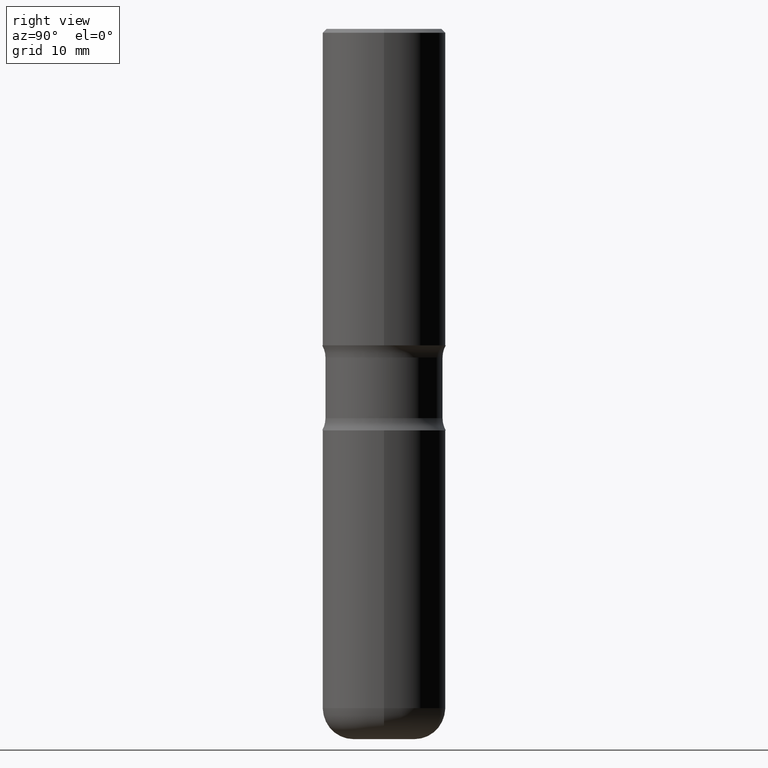
[diagram: clean part render]
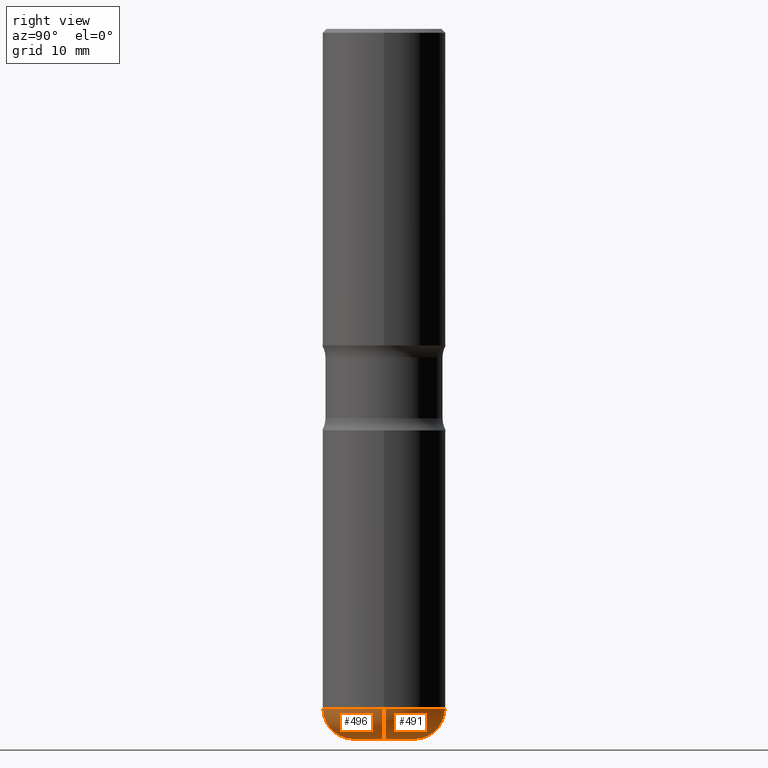
[diagram: same view with one multi-face feature highlighted, each face labeled with its STEP entity id]
A machine part, right view. The highlighted faces form ONE feature: a constant-radius fillet chain: 2 tangent blend faces with common blend radius 4.0132 mm. The faces share edges in the B-rep.
Their STEP definitions:
[1] entity #491 (Torus):
#18 = AXIS2_PLACEMENT_3D ( 'NONE', #289, #519, #332 ) ;
#41 = CIRCLE ( 'NONE', #358, 0.1569500000000003948 ) ;
#44 = EDGE_CURVE ( 'NONE', #530, #207, #303, .T. ) ;
#74 = EDGE_LOOP ( 'NONE', ( #375, #155, #523, #226 ) ) ;
#79 = CIRCLE ( 'NONE', #395, 0.1579999999999999183 ) ;
#102 = VERTEX_POINT ( 'NONE', #383 ) ;
#126 = CARTESIAN_POINT ( 'NONE',  ( -0.1569500000000003670, -1.097929453397717650E-14, -3.463999999999999968 ) ) ;
#146 = CARTESIAN_POINT ( 'NONE',  ( -0.1569500000000003948, -1.069379279849530783E-14, -3.621999999999999886 ) ) ;
#147 = EDGE_CURVE ( 'NONE', #539, #102, #79, .T. ) ;
#155 = ORIENTED_EDGE ( 'NONE', *, *, #44, .T. ) ;
#162 = AXIS2_PLACEMENT_3D ( 'NONE', #301, #211, #508 ) ;
#177 = AXIS2_PLACEMENT_3D ( 'NONE', #126, #239, #414 ) ;
#207 = VERTEX_POINT ( 'NONE', #335 ) ;
#211 = DIRECTION ( 'NONE',  ( -2.445468806185136597E-29, 3.491481338843145583E-15, 1.000000000000000000 ) ) ;
#212 = DIRECTION ( 'NONE',  ( -6.982962677686266711E-15, -1.000000000000000000, 3.491481338843145583E-15 ) ) ;
#226 = ORIENTED_EDGE ( 'NONE', *, *, #147, .F. ) ;
#239 = DIRECTION ( 'NONE',  ( 7.105427357601001859E-15, 1.000000000000000000, -3.491481338843145583E-15 ) ) ;
#263 = EDGE_CURVE ( 'NONE', #102, #207, #329, .T. ) ;
#272 = CARTESIAN_POINT ( 'NONE',  ( 8.857488016002564476E-29, -1.264614540928987199E-14, -3.621999999999999886 ) ) ;
#274 = CARTESIAN_POINT ( 'NONE',  ( 0.1569500000000003948, -1.374212140155273374E-14, -3.621999999999999886 ) ) ;
#289 = CARTESIAN_POINT ( 'NONE',  ( 8.471103944625313198E-29, -1.209449135775265635E-14, -3.463999999999999968 ) ) ;
#301 = CARTESIAN_POINT ( 'NONE',  ( 8.471103944625313198E-29, -1.209449135775265635E-14, -3.463999999999999968 ) ) ;
#303 = CIRCLE ( 'NONE', #177, 0.1579999999999999183 ) ;
#307 = EDGE_CURVE ( 'NONE', #539, #530, #41, .T. ) ;
#329 = CIRCLE ( 'NONE', #18, 0.3149500000000003963 ) ;
#332 = DIRECTION ( 'NONE',  ( 1.000000000000000000, -6.982962677686267499E-15, 0.000000000000000000 ) ) ;
#335 = CARTESIAN_POINT ( 'NONE',  ( -0.3149500000000003408, -9.856637011476220367E-15, -3.463999999999999968 ) ) ;
#355 = DIRECTION ( 'NONE',  ( 1.000000000000000000, -6.982962677686262766E-15, 0.000000000000000000 ) ) ;
#358 = AXIS2_PLACEMENT_3D ( 'NONE', #272, #360, #355 ) ;
#360 = DIRECTION ( 'NONE',  ( -2.445468806185136597E-29, 3.491481338843145583E-15, 1.000000000000000000 ) ) ;
#375 = ORIENTED_EDGE ( 'NONE', *, *, #307, .T. ) ;
#383 = CARTESIAN_POINT ( 'NONE',  ( 0.3149500000000003408, -1.429377545308994780E-14, -3.463999999999999968 ) ) ;
#395 = AXIS2_PLACEMENT_3D ( 'NONE', #560, #212, #428 ) ;
#414 = DIRECTION ( 'NONE',  ( -1.000000000000000000, 7.105427357600995548E-15, 0.000000000000000000 ) ) ;
#428 = DIRECTION ( 'NONE',  ( 1.000000000000000000, -6.982962677686262766E-15, 0.000000000000000000 ) ) ;
#477 = FACE_OUTER_BOUND ( 'NONE', #74, .T. ) ;
#491 = ADVANCED_FACE ( 'NONE', ( #477 ), #526, .T. ) ;
#508 = DIRECTION ( 'NONE',  ( 1.000000000000000000, -6.982962677686263555E-15, 4.883557194083111780E-29 ) ) ;
#519 = DIRECTION ( 'NONE',  ( -2.445468806185136597E-29, 3.491481338843145583E-15, 1.000000000000000000 ) ) ;
#523 = ORIENTED_EDGE ( 'NONE', *, *, #263, .F. ) ;
#526 = TOROIDAL_SURFACE ( 'NONE', #162, 0.1569500000000003670, 0.1579999999999999183 ) ;
#530 = VERTEX_POINT ( 'NONE', #146 ) ;
#539 = VERTEX_POINT ( 'NONE', #274 ) ;
#560 = CARTESIAN_POINT ( 'NONE',  ( 0.1569500000000003670, -1.319046735001551810E-14, -3.463999999999999968 ) ) ;
[2] entity #496 (Torus):
#8 = DIRECTION ( 'NONE',  ( -2.445468806185136597E-29, 3.491481338843145583E-15, 1.000000000000000000 ) ) ;
#15 = EDGE_CURVE ( 'NONE', #530, #539, #168, .T. ) ;
#21 = CARTESIAN_POINT ( 'NONE',  ( 8.857488016002564476E-29, -1.264614540928987199E-14, -3.621999999999999886 ) ) ;
#44 = EDGE_CURVE ( 'NONE', #530, #207, #303, .T. ) ;
#50 = CARTESIAN_POINT ( 'NONE',  ( 8.471103944625313198E-29, -1.209449135775265635E-14, -3.463999999999999968 ) ) ;
#71 = DIRECTION ( 'NONE',  ( -2.445468806185136597E-29, 3.491481338843145583E-15, 1.000000000000000000 ) ) ;
#79 = CIRCLE ( 'NONE', #395, 0.1579999999999999183 ) ;
#102 = VERTEX_POINT ( 'NONE', #383 ) ;
#126 = CARTESIAN_POINT ( 'NONE',  ( -0.1569500000000003670, -1.097929453397717650E-14, -3.463999999999999968 ) ) ;
#146 = CARTESIAN_POINT ( 'NONE',  ( -0.1569500000000003948, -1.069379279849530783E-14, -3.621999999999999886 ) ) ;
#147 = EDGE_CURVE ( 'NONE', #539, #102, #79, .T. ) ;
#148 = ORIENTED_EDGE ( 'NONE', *, *, #147, .T. ) ;
#157 = EDGE_LOOP ( 'NONE', ( #265, #183, #148, #348 ) ) ;
#168 = CIRCLE ( 'NONE', #365, 0.1569500000000003948 ) ;
#177 = AXIS2_PLACEMENT_3D ( 'NONE', #126, #239, #414 ) ;
#181 = DIRECTION ( 'NONE',  ( 1.000000000000000000, -6.982962677686267499E-15, 0.000000000000000000 ) ) ;
#183 = ORIENTED_EDGE ( 'NONE', *, *, #15, .T. ) ;
#202 = CIRCLE ( 'NONE', #267, 0.3149500000000003963 ) ;
#207 = VERTEX_POINT ( 'NONE', #335 ) ;
#212 = DIRECTION ( 'NONE',  ( -6.982962677686266711E-15, -1.000000000000000000, 3.491481338843145583E-15 ) ) ;
#233 = DIRECTION ( 'NONE',  ( 1.000000000000000000, -6.982962677686262766E-15, 0.000000000000000000 ) ) ;
#239 = DIRECTION ( 'NONE',  ( 7.105427357601001859E-15, 1.000000000000000000, -3.491481338843145583E-15 ) ) ;
#265 = ORIENTED_EDGE ( 'NONE', *, *, #44, .F. ) ;
#267 = AXIS2_PLACEMENT_3D ( 'NONE', #50, #8, #181 ) ;
#274 = CARTESIAN_POINT ( 'NONE',  ( 0.1569500000000003948, -1.374212140155273374E-14, -3.621999999999999886 ) ) ;
#287 = DIRECTION ( 'NONE',  ( 1.000000000000000000, -6.982962677686263555E-15, 4.883557194083111780E-29 ) ) ;
#303 = CIRCLE ( 'NONE', #177, 0.1579999999999999183 ) ;
#335 = CARTESIAN_POINT ( 'NONE',  ( -0.3149500000000003408, -9.856637011476220367E-15, -3.463999999999999968 ) ) ;
#348 = ORIENTED_EDGE ( 'NONE', *, *, #500, .F. ) ;
#365 = AXIS2_PLACEMENT_3D ( 'NONE', #21, #71, #233 ) ;
#383 = CARTESIAN_POINT ( 'NONE',  ( 0.3149500000000003408, -1.429377545308994780E-14, -3.463999999999999968 ) ) ;
#395 = AXIS2_PLACEMENT_3D ( 'NONE', #560, #212, #428 ) ;
#414 = DIRECTION ( 'NONE',  ( -1.000000000000000000, 7.105427357600995548E-15, 0.000000000000000000 ) ) ;
#428 = DIRECTION ( 'NONE',  ( 1.000000000000000000, -6.982962677686262766E-15, 0.000000000000000000 ) ) ;
#430 = CARTESIAN_POINT ( 'NONE',  ( 8.471103944625313198E-29, -1.209449135775265635E-14, -3.463999999999999968 ) ) ;
#471 = TOROIDAL_SURFACE ( 'NONE', #548, 0.1569500000000003670, 0.1579999999999999183 ) ;
#496 = ADVANCED_FACE ( 'NONE', ( #512 ), #471, .T. ) ;
#500 = EDGE_CURVE ( 'NONE', #207, #102, #202, .T. ) ;
#512 = FACE_OUTER_BOUND ( 'NONE', #157, .T. ) ;
#530 = VERTEX_POINT ( 'NONE', #146 ) ;
#539 = VERTEX_POINT ( 'NONE', #274 ) ;
#548 = AXIS2_PLACEMENT_3D ( 'NONE', #430, #557, #287 ) ;
#557 = DIRECTION ( 'NONE',  ( -2.445468806185136597E-29, 3.491481338843145583E-15, 1.000000000000000000 ) ) ;
#560 = CARTESIAN_POINT ( 'NONE',  ( 0.1569500000000003670, -1.319046735001551810E-14, -3.463999999999999968 ) ) ;